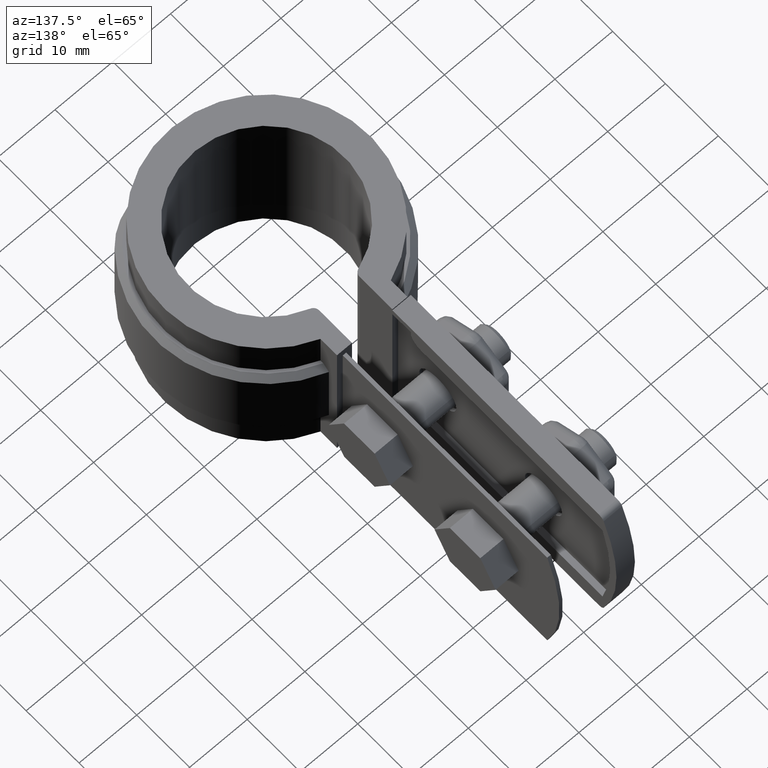
[diagram: clean part render]
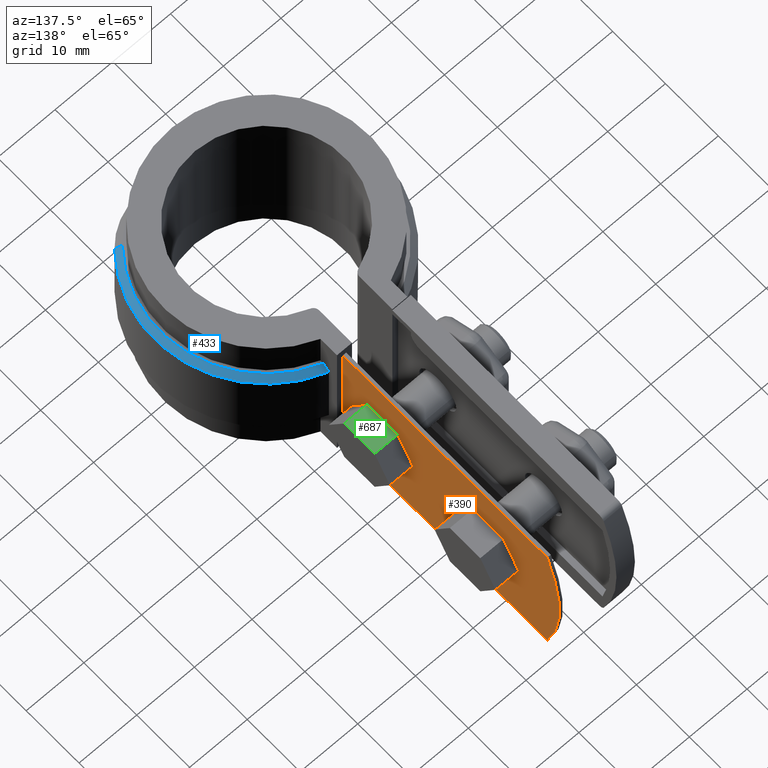
[diagram: same view with three faces highlighted in distinct colors, each labeled with its STEP entity id]
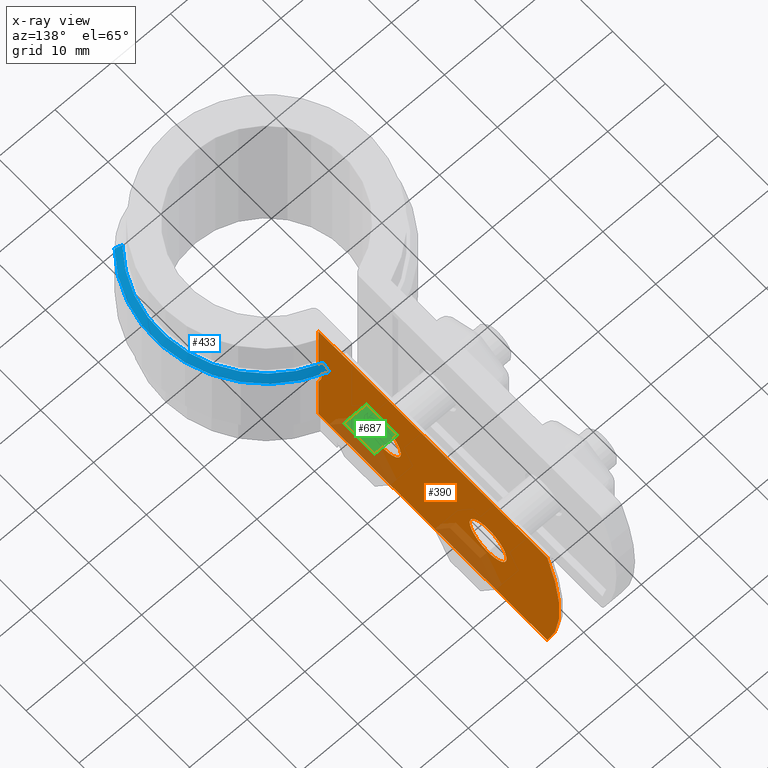
[diagram: x-ray of the same camera — body ghosted, the three highlighted faces saturated]
A machine part, auxiliary view with three faces highlighted in distinct colors.
The next image is the same camera in x-ray (body ghosted, the three faces saturated) — at least one of them is partly hidden behind the body in this view.
Their STEP definitions:

[orange] entity #390 — the highlighted planar face has unit normal (-1, 0, 0).
#390 = ADVANCED_FACE( '', ( #757, #758, #759 ), #760, .F. );
#757 = FACE_BOUND( '', #1629, .T. );
#758 = FACE_BOUND( '', #1630, .T. );
#759 = FACE_OUTER_BOUND( '', #1631, .T. );
#760 = PLANE( '', #1632 );
#1629 = EDGE_LOOP( '', ( #3366 ) );
#1630 = EDGE_LOOP( '', ( #3367 ) );
#1631 = EDGE_LOOP( '', ( #3368, #3369, #3370, #3371, #3372, #3373 ) );
#1632 = AXIS2_PLACEMENT_3D( '', #3374, #3375, #3376 );
#3366 = ORIENTED_EDGE( '', *, *, #6312, .F. );
#3367 = ORIENTED_EDGE( '', *, *, #6313, .F. );
#3368 = ORIENTED_EDGE( '', *, *, #6246, .F. );
#3369 = ORIENTED_EDGE( '', *, *, #6314, .T. );
#3370 = ORIENTED_EDGE( '', *, *, #6315, .T. );
#3371 = ORIENTED_EDGE( '', *, *, #6316, .F. );
#3372 = ORIENTED_EDGE( '', *, *, #6220, .F. );
#3373 = ORIENTED_EDGE( '', *, *, #6303, .T. );
#3374 = CARTESIAN_POINT( '', ( 5.10000000000000, 15.3831076184235, 0.000000000000000 ) );
#3375 = DIRECTION( '', ( -1.00000000000000, 6.12303176911189E-017, 0.000000000000000 ) );
#3376 = DIRECTION( '', ( 6.12303176911189E-017, 1.00000000000000, 0.000000000000000 ) );
#6220 = EDGE_CURVE( '', #7148, #7150, #7151, .T. );
#6246 = EDGE_CURVE( '', #7197, #7191, #7199, .T. );
#6303 = EDGE_CURVE( '', #7148, #7191, #7292, .T. );
#6312 = EDGE_CURVE( '', #7304, #7304, #7305, .F. );
#6313 = EDGE_CURVE( '', #7306, #7306, #7307, .F. );
#6314 = EDGE_CURVE( '', #7197, #7308, #7309, .T. );
#6315 = EDGE_CURVE( '', #7308, #7310, #7311, .T. );
#6316 = EDGE_CURVE( '', #7150, #7310, #7312, .T. );
#7148 = VERTEX_POINT( '', #8775 );
#7150 = VERTEX_POINT( '', #8777 );
#7151 = LINE( '', #8778, #8779 );
#7191 = VERTEX_POINT( '', #8983 );
#7197 = VERTEX_POINT( '', #9029 );
#7199 = B_SPLINE_CURVE_WITH_KNOTS( '', 3, ( #9044, #9045, #9046, #9047, #9048, #9049, #9050, #9051, #9052, #9053 ), .UNSPECIFIED., .F., .F., ( 4, 2, 2, 2, 4 ), ( 7.15244812269100E-018, 0.00136972833482962, 0.00273945666965922, 0.00410918500448883, 0.00547891333931844 ), .UNSPECIFIED. );
#7292 = LINE( '', #9473, #9474 );
#7304 = VERTEX_POINT( '', #9526 );
#7305 = CIRCLE( '', #9527, 3.50000000000000 );
#7306 = VERTEX_POINT( '', #9528 );
#7307 = CIRCLE( '', #9529, 3.50000000000000 );
#7308 = VERTEX_POINT( '', #9530 );
#7309 = LINE( '', #9531, #9532 );
#7310 = VERTEX_POINT( '', #9533 );
#7311 = LINE( '', #9534, #9535 );
#7312 = CIRCLE( '', #9536, 35.0000000000000 );
#8775 = CARTESIAN_POINT( '', ( 5.10000000000000, 15.3831076184235, 0.000000000000000 ) );
#8777 = CARTESIAN_POINT( '', ( 5.09999999999998, 58.6860266241837, 0.000000000000000 ) );
#8778 = CARTESIAN_POINT( '', ( 5.10000000000000, 15.3831076184235, 0.000000000000000 ) );
#8779 = VECTOR( '', #12197, 1000.00000000000 );
#8983 = CARTESIAN_POINT( '', ( 5.10000000000000, 15.3831076184235, -9.84439986604447 ) );
#9029 = CARTESIAN_POINT( '', ( 5.10000000000000, 15.3831076184235, -15.1556001339555 ) );
#9044 = CARTESIAN_POINT( '', ( 5.10000000000000, 15.3831076184235, -15.1556001339555 ) );
#9045 = CARTESIAN_POINT( '', ( 5.10000000000000, 15.5894396324821, -14.7411726003786 ) );
#9046 = CARTESIAN_POINT( '', ( 5.10000000000001, 15.7457538054947, -14.3115021692077 ) );
#9047 = CARTESIAN_POINT( '', ( 5.10000000000001, 15.9602605933105, -13.4222588394208 ) );
#9048 = CARTESIAN_POINT( '', ( 5.09999999999998, 16.0173587787112, -12.9580350666352 ) );
#9049 = CARTESIAN_POINT( '', ( 5.09999999999998, 16.0176066976480, -12.0450125939992 ) );
#9050 = CARTESIAN_POINT( '', ( 5.10000000000000, 15.9625813983814, -11.5897674915801 ) );
#9051 = CARTESIAN_POINT( '', ( 5.10000000000000, 15.7468416891248, -10.6906399166197 ) );
#9052 = CARTESIAN_POINT( '', ( 5.09999999999941, 15.5894183484999, -10.2587846497442 ) );
#9053 = CARTESIAN_POINT( '', ( 5.09999999999941, 15.3831076184236, -9.84439986604446 ) );
#9473 = CARTESIAN_POINT( '', ( 5.10000000000000, 15.3831076184235, 0.000000000000000 ) );
#9474 = VECTOR( '', #12270, 1000.00000000000 );
#9526 = CARTESIAN_POINT( '', ( 5.10000000000000, 23.9942845476287, -12.5000000000000 ) );
#9527 = AXIS2_PLACEMENT_3D( '', #12280, #12281, #12282 );
#9528 = CARTESIAN_POINT( '', ( 5.10000000000000, 43.9942845476287, -12.5000000000000 ) );
#9529 = AXIS2_PLACEMENT_3D( '', #12283, #12284, #12285 );
#9530 = CARTESIAN_POINT( '', ( 5.10000000000000, 15.3831076184235, -25.0000000000000 ) );
#9531 = CARTESIAN_POINT( '', ( 5.10000000000000, 15.3831076184235, 0.000000000000000 ) );
#9532 = VECTOR( '', #12286, 1000.00000000000 );
#9533 = CARTESIAN_POINT( '', ( 5.09999999999998, 58.6860266241838, -25.0000000000000 ) );
#9534 = CARTESIAN_POINT( '', ( 5.10000000000000, 15.3831076184235, -25.0000000000000 ) );
#9535 = VECTOR( '', #12287, 1000.00000000000 );
#9536 = AXIS2_PLACEMENT_3D( '', #12288, #12289, #12290 );
#12197 = DIRECTION( '', ( 6.12303176911189E-017, 1.00000000000000, 0.000000000000000 ) );
#12270 = DIRECTION( '', ( 0.000000000000000, 0.000000000000000, -1.00000000000000 ) );
#12280 = CARTESIAN_POINT( '', ( 5.10000000000000, 27.4942845476287, -12.5000000000000 ) );
#12281 = DIRECTION( '', ( -1.00000000000000, 6.12303176911189E-017, 0.000000000000000 ) );
#12282 = DIRECTION( '', ( -6.12303176911189E-017, -1.00000000000000, 0.000000000000000 ) );
#12283 = CARTESIAN_POINT( '', ( 5.10000000000000, 47.4942845476287, -12.5000000000000 ) );
#12284 = DIRECTION( '', ( -1.00000000000000, 6.12303176911189E-017, 0.000000000000000 ) );
#12285 = DIRECTION( '', ( -6.12303176911189E-017, -1.00000000000000, 0.000000000000000 ) );
#12286 = DIRECTION( '', ( 0.000000000000000, 0.000000000000000, -1.00000000000000 ) );
#12287 = DIRECTION( '', ( 6.12303176911189E-017, 1.00000000000000, 0.000000000000000 ) );
#12288 = CARTESIAN_POINT( '', ( 5.10000000000001, 25.9942845476287, -12.5000000000000 ) );
#12289 = DIRECTION( '', ( -1.00000000000000, 6.12303176911189E-017, 0.000000000000000 ) );
#12290 = DIRECTION( '', ( -6.12303176911189E-017, -1.00000000000000, 0.000000000000000 ) );

[blue] entity #433 — the highlighted conical surface has half-angle 45 deg.
#433 = ADVANCED_FACE( '', ( #855 ), #856, .T. );
#855 = FACE_OUTER_BOUND( '', #1775, .T. );
#856 = CONICAL_SURFACE( '', #1776, 19.4350000000000, 0.785398163397449 );
#1775 = EDGE_LOOP( '', ( #3750, #3751, #3752, #3753 ) );
#1776 = AXIS2_PLACEMENT_3D( '', #3754, #3755, #3756 );
#3750 = ORIENTED_EDGE( '', *, *, #6451, .F. );
#3751 = ORIENTED_EDGE( '', *, *, #6457, .F. );
#3752 = ORIENTED_EDGE( '', *, *, #6454, .F. );
#3753 = ORIENTED_EDGE( '', *, *, #6458, .F. );
#3754 = CARTESIAN_POINT( '', ( -8.67361737988404E-016, 0.000000000000000, -6.00000000000000 ) );
#3755 = DIRECTION( '', ( 0.000000000000000, 0.000000000000000, -1.00000000000000 ) );
#3756 = DIRECTION( '', ( -1.00000000000000, 0.000000000000000, 0.000000000000000 ) );
#6451 = EDGE_CURVE( '', #7543, #7545, #7546, .T. );
#6454 = EDGE_CURVE( '', #7549, #7550, #7551, .T. );
#6457 = EDGE_CURVE( '', #7550, #7543, #7554, .T. );
#6458 = EDGE_CURVE( '', #7545, #7549, #7555, .F. );
#7543 = VERTEX_POINT( '', #10013 );
#7545 = VERTEX_POINT( '', #10016 );
#7546 = B_SPLINE_CURVE_WITH_KNOTS( '', 3, ( #10017, #10018, #10019, #10020 ), .UNSPECIFIED., .F., .F., ( 4, 4 ), ( 0.000000000000000, 0.00145461426675659 ), .UNSPECIFIED. );
#7549 = VERTEX_POINT( '', #10025 );
#7550 = VERTEX_POINT( '', #10026 );
#7551 = LINE( '', #10027, #10028 );
#7554 = CIRCLE( '', #10031, 18.4350000000000 );
#7555 = CIRCLE( '', #10032, 19.4350000000000 );
#10013 = CARTESIAN_POINT( '', ( 6.09999999999998, 17.3965291078422, -5.00000000000000 ) );
#10016 = CARTESIAN_POINT( '', ( 6.09999999999998, 18.4528920497574, -5.99999999999999 ) );
#10017 = CARTESIAN_POINT( '', ( 6.09999999999998, 17.3965291078422, -5.00000000000000 ) );
#10018 = CARTESIAN_POINT( '', ( 6.09999999999998, 17.7491735695479, -5.33277947614771 ) );
#10019 = CARTESIAN_POINT( '', ( 6.09999999999998, 18.1012669802899, -5.66614358379865 ) );
#10020 = CARTESIAN_POINT( '', ( 6.09999999999998, 18.4528920497574, -6.00000000000000 ) );
#10025 = CARTESIAN_POINT( '', ( 14.5583830689193, -12.8752750424448, -5.99999999999999 ) );
#10026 = CARTESIAN_POINT( '', ( 13.8093023861862, -12.2127962648557, -5.00000000000000 ) );
#10027 = CARTESIAN_POINT( '', ( 14.5583830689193, -12.8752750424448, -6.00000000000000 ) );
#10028 = VECTOR( '', #12496, 1000.00000000000 );
#10031 = AXIS2_PLACEMENT_3D( '', #12503, #12504, #12505 );
#10032 = AXIS2_PLACEMENT_3D( '', #12506, #12507, #12508 );
#12496 = DIRECTION( '', ( -0.529680030416481, 0.468443236025451, 0.707106781186547 ) );
#12503 = CARTESIAN_POINT( '', ( -8.67361737988404E-016, 0.000000000000000, -5.00000000000000 ) );
#12504 = DIRECTION( '', ( 0.000000000000000, 0.000000000000000, 1.00000000000000 ) );
#12505 = DIRECTION( '', ( 1.00000000000000, 0.000000000000000, 0.000000000000000 ) );
#12506 = CARTESIAN_POINT( '', ( -8.67361737988404E-016, 0.000000000000000, -6.00000000000000 ) );
#12507 = DIRECTION( '', ( 0.000000000000000, 0.000000000000000, 1.00000000000000 ) );
#12508 = DIRECTION( '', ( 1.00000000000000, 0.000000000000000, 0.000000000000000 ) );

[green] entity #687 — the highlighted planar face has unit normal (0, -0, -1).
#687 = ADVANCED_FACE( '', ( #1399 ), #1400, .F. );
#1399 = FACE_OUTER_BOUND( '', #2775, .T. );
#1400 = PLANE( '', #2776 );
#2775 = EDGE_LOOP( '', ( #6104, #6105, #6106, #6107 ) );
#2776 = AXIS2_PLACEMENT_3D( '', #6108, #6109, #6110 );
#6104 = ORIENTED_EDGE( '', *, *, #7070, .T. );
#6105 = ORIENTED_EDGE( '', *, *, #7086, .F. );
#6106 = ORIENTED_EDGE( '', *, *, #7084, .F. );
#6107 = ORIENTED_EDGE( '', *, *, #7087, .T. );
#6108 = CARTESIAN_POINT( '', ( 9.10000000000000, 30.3810358935778, -7.49999999999842 ) );
#6109 = DIRECTION( '', ( 0.000000000000000, -1.66533453693756E-016, -1.00000000000000 ) );
#6110 = DIRECTION( '', ( 0.000000000000000, 1.00000000000000, -1.66533453693756E-016 ) );
#7070 = EDGE_CURVE( '', #8555, #8553, #8556, .T. );
#7084 = EDGE_CURVE( '', #8578, #8580, #8581, .T. );
#7086 = EDGE_CURVE( '', #8580, #8553, #8583, .T. );
#7087 = EDGE_CURVE( '', #8578, #8555, #8584, .T. );
#8553 = VERTEX_POINT( '', #12068 );
#8555 = VERTEX_POINT( '', #12071 );
#8556 = LINE( '', #12072, #12073 );
#8578 = VERTEX_POINT( '', #12104 );
#8580 = VERTEX_POINT( '', #12107 );
#8581 = LINE( '', #12108, #12109 );
#8583 = LINE( '', #12112, #12113 );
#8584 = LINE( '', #12114, #12115 );
#12068 = CARTESIAN_POINT( '', ( 5.10000000000000, 24.6075332016797, -7.49999999999841 ) );
#12071 = CARTESIAN_POINT( '', ( 5.10000000000000, 30.3810358935778, -7.49999999999842 ) );
#12072 = CARTESIAN_POINT( '', ( 5.10000000000000, 30.3810358935778, -7.49999999999842 ) );
#12073 = VECTOR( '', #13350, 1000.00000000011 );
#12104 = CARTESIAN_POINT( '', ( 9.10000000000000, 30.3810358935778, -7.49999999999842 ) );
#12107 = CARTESIAN_POINT( '', ( 9.10000000000000, 24.6075332016797, -7.49999999999841 ) );
#12108 = CARTESIAN_POINT( '', ( 9.10000000000000, 30.3810358935778, -7.49999999999842 ) );
#12109 = VECTOR( '', #13370, 1000.00000000011 );
#12112 = CARTESIAN_POINT( '', ( 9.10000000000000, 24.6075332016797, -7.49999999999841 ) );
#12113 = VECTOR( '', #13372, 999.999999999789 );
#12114 = CARTESIAN_POINT( '', ( 9.10000000000000, 30.3810358935778, -7.49999999999842 ) );
#12115 = VECTOR( '', #13373, 999.999999999789 );
#13350 = DIRECTION( '', ( 0.000000000000000, -1.00000000000000, 1.66533453693756E-016 ) );
#13370 = DIRECTION( '', ( 0.000000000000000, -1.00000000000000, 1.66533453693756E-016 ) );
#13372 = DIRECTION( '', ( -1.00000000000000, 0.000000000000000, 0.000000000000000 ) );
#13373 = DIRECTION( '', ( -1.00000000000000, 0.000000000000000, 0.000000000000000 ) );